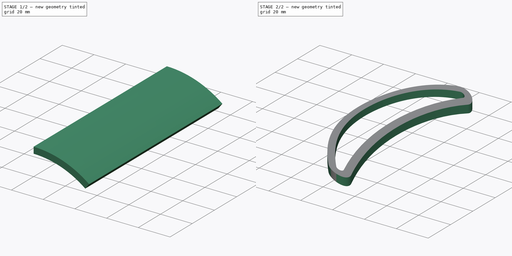
[diagram: build sequence overview — one tinted view per stage of 2, left to right]
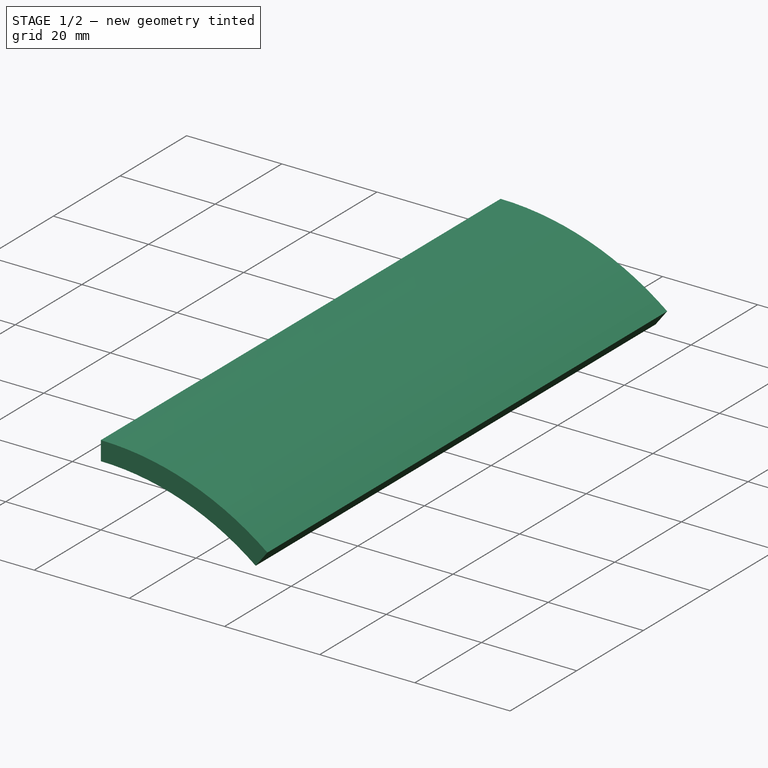
[diagram: stage 1 of 2 — iso view after this stage's code; geometry added in this stage tinted green]
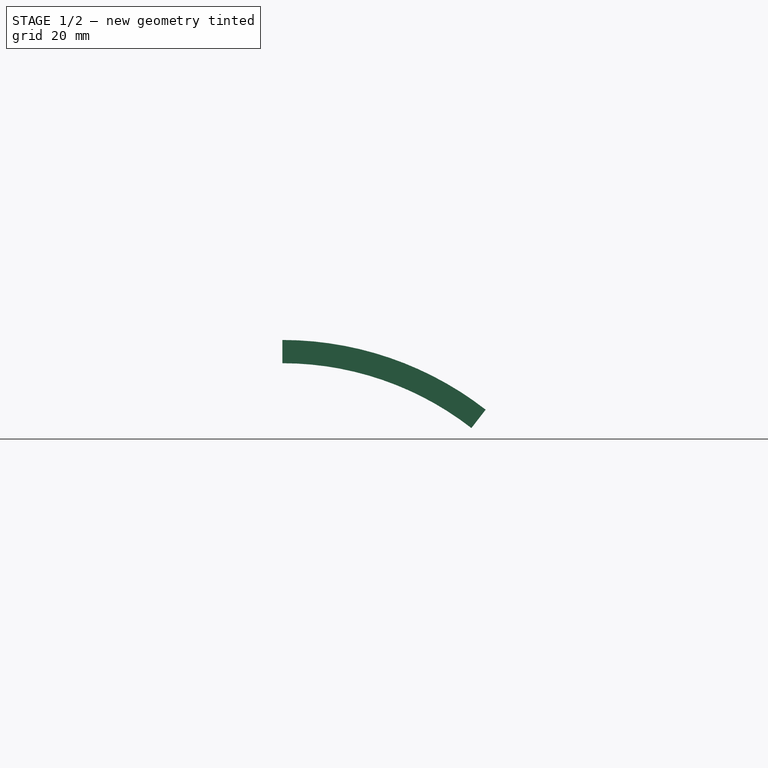
[diagram: stage 1 of 2 — front view after this stage's code; geometry added in this stage tinted green]
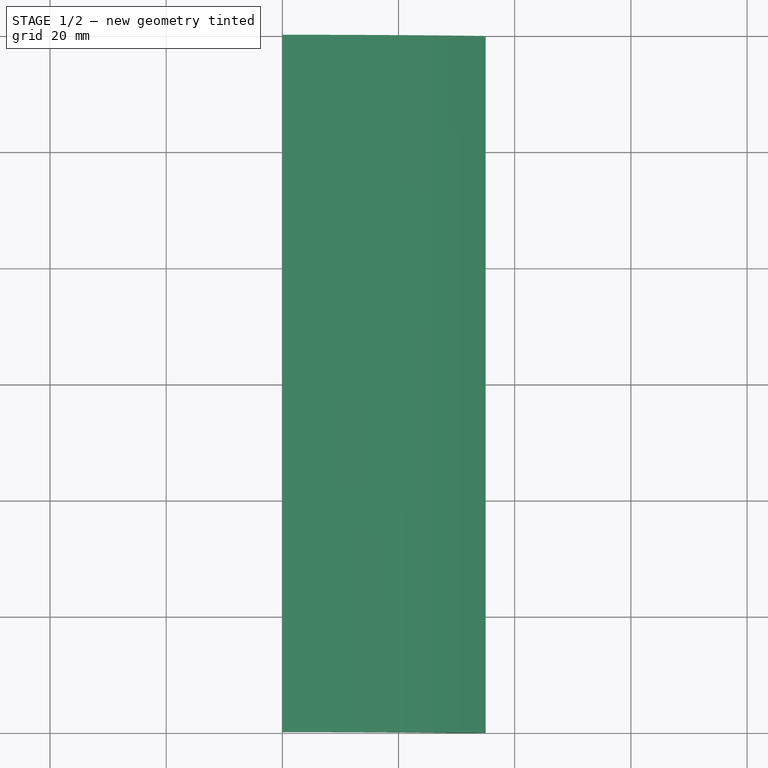
[diagram: stage 1 of 2 — top view after this stage's code; geometry added in this stage tinted green]
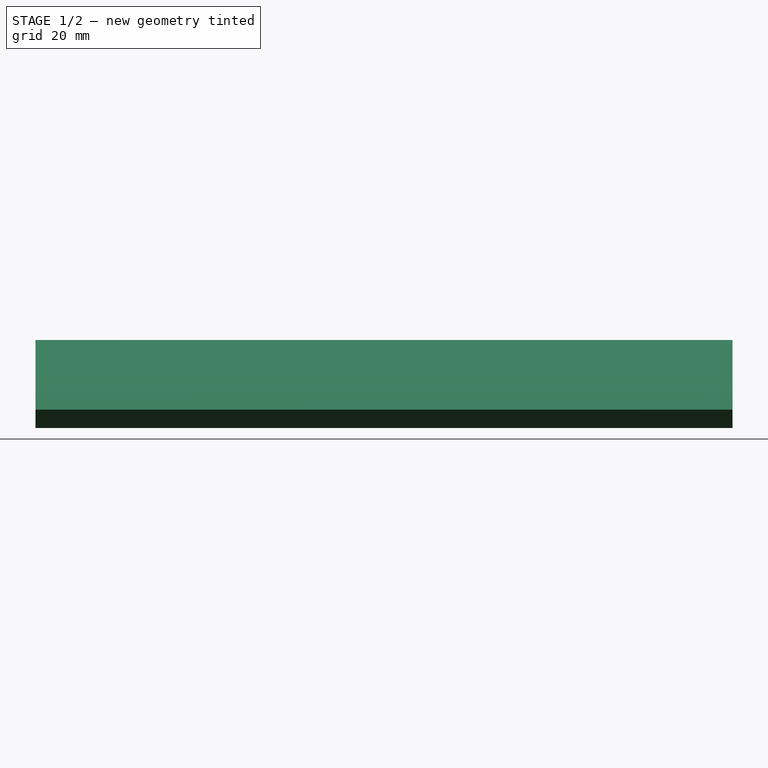
[diagram: stage 1 of 2 — right view after this stage's code; geometry added in this stage tinted green]
FCSTD DOCUMENT  (FreeCAD 1.0R39109 (Git))
Label: Clip Half
License: All rights reserved
LicenseURL: https://en.wikipedia.org/wiki/All_rights_reserved
objects: Sketcher::SketchObject×2, PartDesign::Pad×1, PartDesign::Plane×1, PartDesign::Pocket×1, PartDesign::Body×1
note: 12 computed .brp shape members not serialized (recipe doc carries the construction recipe); baked Part::Feature solids carry a one-line shape summary decoded from their .brp

FEATURE [Sketcher::SketchObject] Sketch
  ArcFitTolerance = 1e-06
  AttachmentSupport = -> [XZ_Plane]
  FullyConstrained = true
  MakeInternals = false
  MapMode = 5
  Placement = pos=(0,0,0) rot=(1,0,0;1.5708rad)
  sketch-geometry (7):
    g0: ArcOfCircle CenterX=0 CenterY=-57.0417 CenterZ=0 NormalX=0 NormalY=0 NormalZ=1 AngleXU=0 Radius=57.0417 StartAngle=0.910202 EndAngle=1.5708
    g1: ArcOfCircle CenterX=0 CenterY=-57.0417 CenterZ=0 NormalX=0 NormalY=0 NormalZ=1 AngleXU=0 Radius=53.0417 StartAngle=0.910202 EndAngle=1.5708
    g2: LineSegment [constr] StartX=35 StartY=0 StartZ=0 EndX=35 EndY=-12 EndZ=0
    g3: LineSegment [constr] StartX=0 StartY=0 StartZ=0 EndX=35 EndY=0 EndZ=0
    g4: LineSegment [constr] StartX=35 StartY=-12 StartZ=0 EndX=0 EndY=-12 EndZ=0
    g5: LineSegment StartX=-9.2e-15 StartY=0 StartZ=0 EndX=-9.2e-15 EndY=-4 EndZ=0
    g6: LineSegment StartX=32.5457 StartY=-15.1585 StartZ=0 EndX=35 EndY=-12 EndZ=0
  constraints (20):
    c: Coincident(g0,g1)
    c: PointOnObject(g0,g-2)
    c: Vertical(g2)
    c: Tangent(g0,g3) = 1.5708
    c: Horizontal(g4)
    c: Distance(g4,g3) = 12
    c: Coincident(g2,g3)
    c: Coincident(g4,g2)
    c: Coincident(g5,g0)
    c: Coincident(g5,g1)
    c: Vertical(g5)
    c: Coincident(g6,g1)
    c: Coincident(g6,g0)
    c: Perpendicular(g1,g6)
    c: Distance(g6,g6) = 4
    c: PointOnObject(g4,g-2)
    c: Horizontal(g3)
    c: DistanceX(g3,g3) = 35
    c: Coincident(g3,g-1)
    c: Coincident(g0,g2)
FEATURE [PartDesign::Pad] Pad
  Direction = (0,-1,2e-16)
  Length = 120
  Length2 = 10
  Placement = pos=(0,0,0) rot=(1,0,0;1.5708rad)
  Profile = -> Sketch
  ReferenceAxis = -> Sketch [N_Axis]
  Refine = true
  Suppressed = false
  Type = 0
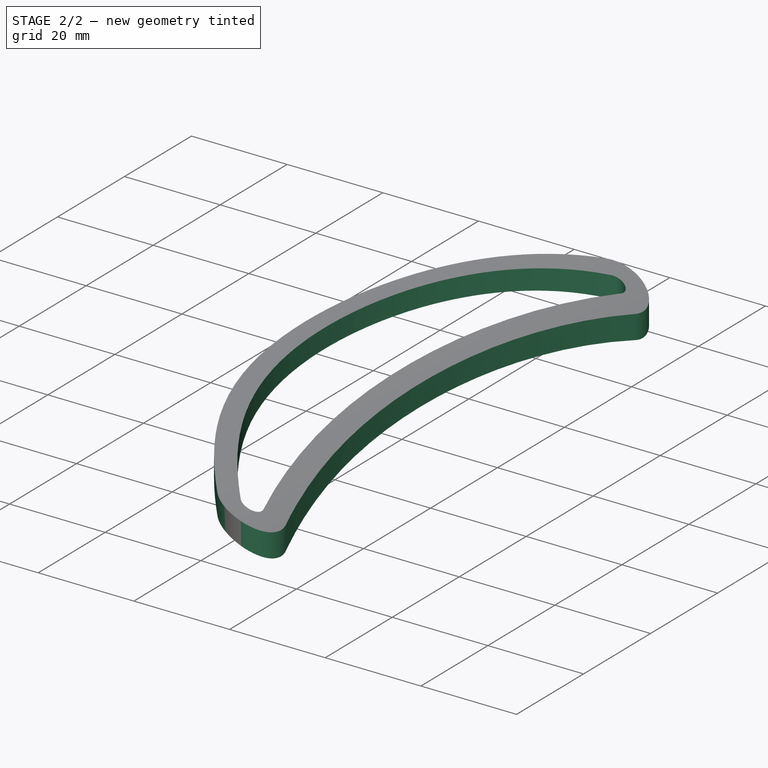
[diagram: stage 2 of 2 — iso view after this stage's code; geometry added in this stage tinted green]
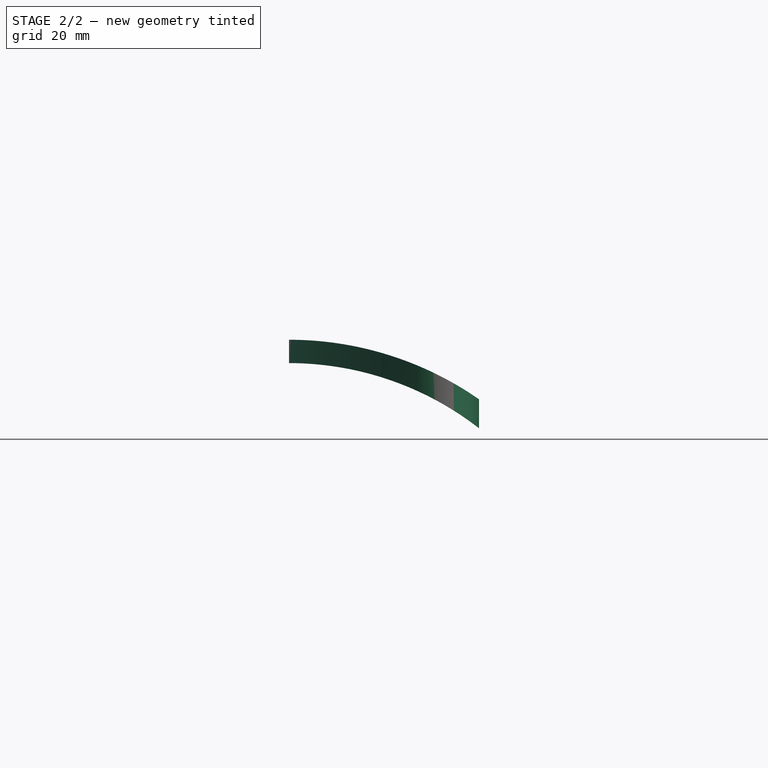
[diagram: stage 2 of 2 — front view after this stage's code; geometry added in this stage tinted green]
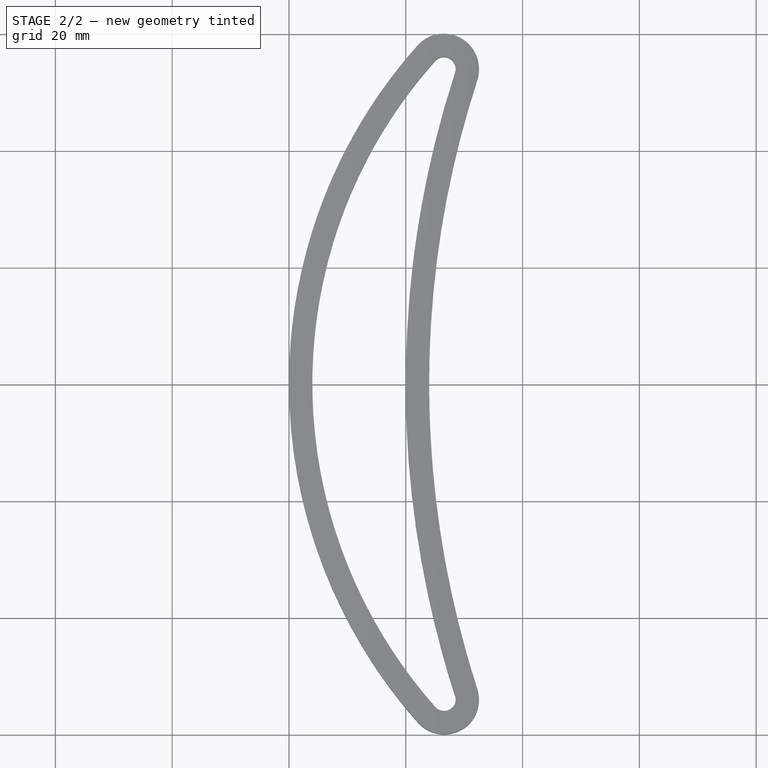
[diagram: stage 2 of 2 — top view after this stage's code; geometry added in this stage tinted green]
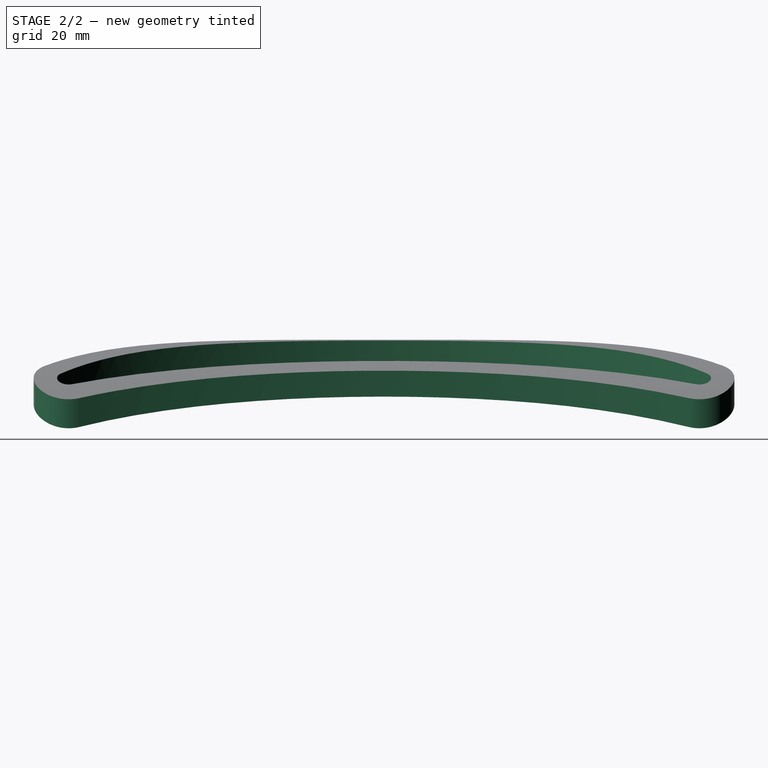
[diagram: stage 2 of 2 — right view after this stage's code; geometry added in this stage tinted green]
FEATURE [PartDesign::Plane] DatumPlane
  AttachmentOffset = pos=(0,0,2) rot=(0,0,1;0rad)
  AttachmentSupport = -> [XY_Plane]
  Length = 75.8148
  MapMode = 5
  Placement = pos=(0,0,2) rot=(0,0,1;0rad)
  ResizeMode = 0
  Width = 163.269
FEATURE [Sketcher::SketchObject] Sketch001
  ArcFitTolerance = 1e-06
  AttachmentSupport = -> [DatumPlane]
  ExternalGeometry = -> [Pad]
  FullyConstrained = false
  MakeInternals = false
  MapMode = 5
  Placement = pos=(0,0,2) rot=(0,0,1;0rad)
  sketch-geometry (24):
    g0: LineSegment [constr] StartX=32.5457 StartY=-60 StartZ=0 EndX=2.84e-14 EndY=-60 EndZ=0
    g1: LineSegment [constr] StartX=32.5457 StartY=0 StartZ=0 EndX=32.5457 EndY=-60 EndZ=0
    g2: LineSegment [constr] StartX=32.5457 StartY=-120 StartZ=0 EndX=32.5457 EndY=-60 EndZ=0
    g3: ArcOfCircle CenterX=26.5457 CenterY=-6 CenterZ=0 NormalX=0 NormalY=0 NormalZ=1 AngleXU=0 Radius=6 StartAngle=5.96928 EndAngle=8.69765
    g4: LineSegment [constr] StartX=22.0631 StartY=-2.01166 StartZ=0 EndX=26.5457 EndY=-6 EndZ=0
    g5: LineSegment [constr] StartX=32.2525 StartY=-7.85264 StartZ=0 EndX=26.5457 EndY=-6 EndZ=0
    g6: ArcOfCircle CenterX=87.2367 CenterY=-60 CenterZ=0 NormalX=0 NormalY=0 NormalZ=1 AngleXU=0 Radius=87.2367 StartAngle=2.41447 EndAngle=3.14159
    g7: ArcOfCircle CenterX=192.886 CenterY=-60 CenterZ=0 NormalX=0 NormalY=0 NormalZ=1 AngleXU=0 Radius=168.886 StartAngle=2.82769 EndAngle=3.14159
    g8: LineSegment [constr] StartX=170.473 StartY=-60 StartZ=0 EndX=174.473 EndY=-60 EndZ=0
    g9: LineSegment StartX=-32.871 StartY=23.165 StartZ=0 EndX=-32.871 EndY=-134.49 EndZ=0
    g10: LineSegment StartX=-32.871 StartY=-134.49 StartZ=0 EndX=73.8206 EndY=-134.49 EndZ=0
    g11: LineSegment StartX=73.8206 StartY=-134.49 StartZ=0 EndX=73.8206 EndY=23.165 EndZ=0
    g12: LineSegment StartX=73.8206 StartY=23.165 StartZ=0 EndX=-32.871 EndY=23.165 EndZ=0
    g13: ArcOfCircle CenterX=87.2367 CenterY=-60 CenterZ=0 NormalX=0 NormalY=0 NormalZ=1 AngleXU=0 Radius=87.2367 StartAngle=3.14159 EndAngle=3.86872
    g14: ArcOfCircle CenterX=26.5457 CenterY=-114 CenterZ=0 NormalX=0 NormalY=0 NormalZ=1 AngleXU=0 Radius=6 StartAngle=3.86872 EndAngle=6.59709
    g15: ArcOfCircle CenterX=192.886 CenterY=-60 CenterZ=0 NormalX=0 NormalY=0 NormalZ=1 AngleXU=0 Radius=168.886 StartAngle=3.14159 EndAngle=3.4555
    g16: LineSegment [constr] StartX=26.5457 StartY=-114 StartZ=0 EndX=32.2525 EndY=-112.147 EndZ=0
    g17: LineSegment [constr] StartX=26.5457 StartY=-114 StartZ=0 EndX=22.0631 EndY=-117.988 EndZ=0
    g18: ArcOfCircle CenterX=26.5457 CenterY=-114 CenterZ=0 NormalX=0 NormalY=0 NormalZ=1 AngleXU=0 Radius=2 StartAngle=3.86872 EndAngle=6.59709
    g19: ArcOfCircle CenterX=192.886 CenterY=-60 CenterZ=0 NormalX=0 NormalY=0 NormalZ=1 AngleXU=0 Radius=172.886 StartAngle=3.14159 EndAngle=3.4555
    g20: ArcOfCircle CenterX=192.886 CenterY=-60 CenterZ=0 NormalX=0 NormalY=0 NormalZ=1 AngleXU=0 Radius=172.886 StartAngle=2.82769 EndAngle=3.14159
    g21: ArcOfCircle CenterX=26.5457 CenterY=-6 CenterZ=0 NormalX=0 NormalY=0 NormalZ=1 AngleXU=0 Radius=2 StartAngle=5.96928 EndAngle=8.69765
    g22: ArcOfCircle CenterX=87.2367 CenterY=-60 CenterZ=0 NormalX=0 NormalY=0 NormalZ=1 AngleXU=0 Radius=83.2367 StartAngle=2.41447 EndAngle=3.14159
    g23: ArcOfCircle CenterX=87.2367 CenterY=-60 CenterZ=0 NormalX=0 NormalY=0 NormalZ=1 AngleXU=0 Radius=83.2367 StartAngle=3.14159 EndAngle=3.86872
  constraints (55):
    c: Horizontal(g0)
    c: PointOnObject(g1,g-1)
    c: Coincident(g2,g1)
    c: Coincident(g0,g1)
    c: Vertical(g1)
    c: Vertical(g2)
    c: PointOnObject(g0,g-2)
    c: Equal(g2,g1)
    c: Coincident(g-3,g2)
    c: Tangent(g3,g-1)
    c: Coincident(g4,g3)
    c: Coincident(g4,g3)
    c: Coincident(g5,g3)
    c: Coincident(g5,g3)
    c: Coincident(g6,g0)
    c: Coincident(g6,g3)
    c: Perpendicular(g6,g4)
    c: Perpendicular(g6,g0)
    c: PointOnObject(g7,g0)
    c: Coincident(g7,g3)
    c: Perpendicular(g7,g5)
    c: Radius(g3) = 6
    c: Tangent(g3,g1)
    c: PointOnObject(g8,g6)
    c: Coincident(g9,g10)
    c: Coincident(g10,g11)
    c: Coincident(g11,g12)
    c: Coincident(g12,g9)
    c: Vertical(g9)
    c: Vertical(g11)
    c: Horizontal(g10)
    c: Horizontal(g12)
    c: Coincident(g13,g14)
    c: Coincident(g15,g14)
    c: Radius(g14) = 6
    c: Coincident(g15,g7)
    c: Coincident(g13,g0)
    c: Tangent(g14,g-4)
    c: Coincident(g16,g14)
    c: Coincident(g16,g14)
    c: Coincident(g17,g14)
    c: Coincident(g17,g13)
    c: Perpendicular(g13,g17)
    c: Perpendicular(g15,g16)
    c: Tangent(g14,g2)
    c: Perpendicular(g15,g0)
    c: Perpendicular(g7,g0)
    c: Distance(g0,g7) = 24
    c: Perpendicular(g13,g0)
    c: Tangent(g18,g19) = 1.5708
    c: Tangent(g18,g23) = -1.5708
    c: Tangent(g19,g20) = -1.5708
    c: Tangent(g20,g21) = 1.5708
    c: Tangent(g21,g22) = -1.5708
    c: Tangent(g22,g23) = -1.5708
FEATURE [PartDesign::Pocket] Pocket
  BaseFeature = -> Pad
  Direction = (0,0,-1)
  Length = 5
  Length2 = 5
  Placement = pos=(0,0,0) rot=(1,0,0;1.5708rad)
  Profile = -> Sketch001
  ReferenceAxis = -> Sketch001 [N_Axis]
  Refine = true
  Suppressed = false
  Type = 1
FEATURE [PartDesign::Body] Body
  AllowCompound = false
  Group = -> [Sketch,Pad,DatumPlane,Sketch001,Pocket]
  Origin = -> Origin
  Tip = -> Pocket
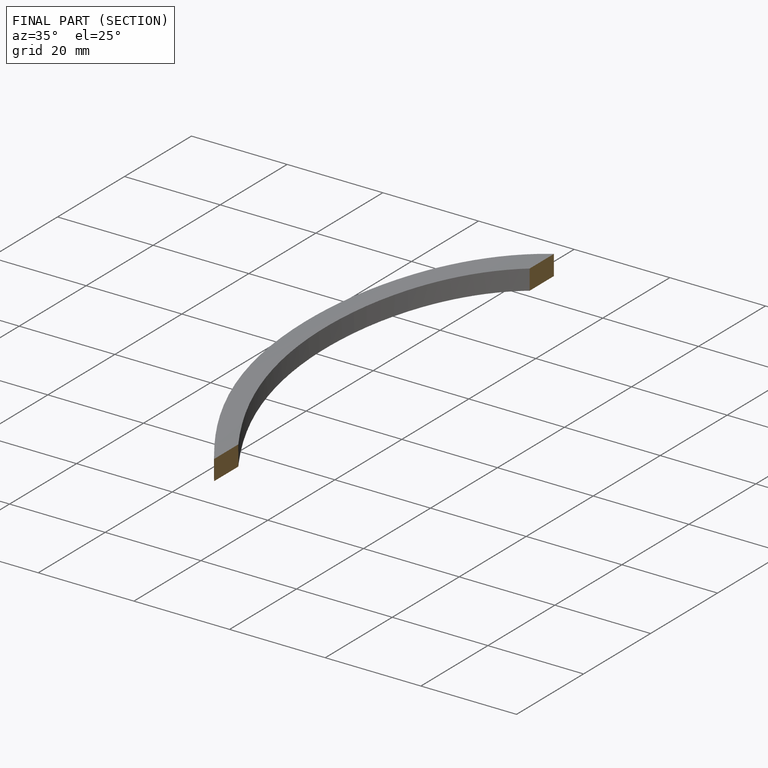
[diagram: finished part — half-section view (interior)]
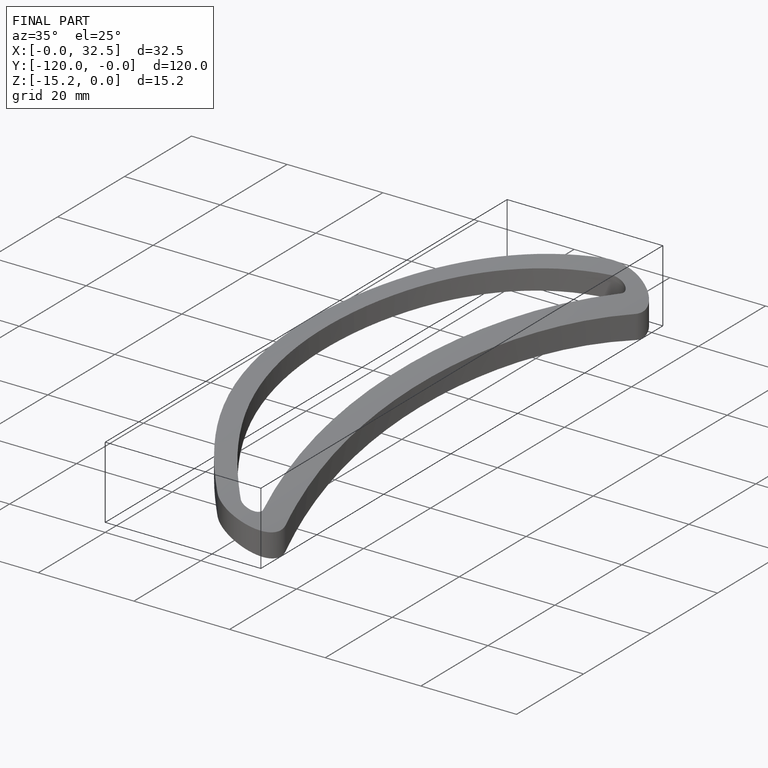
[diagram: finished part — iso view with bounding-box wireframe]
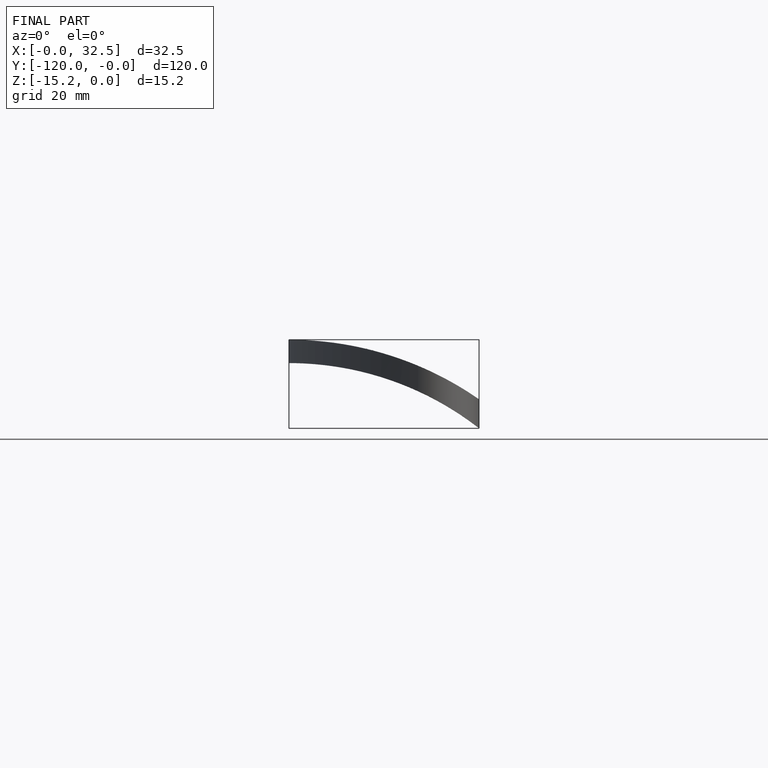
[diagram: finished part — front view with bounding-box wireframe]
